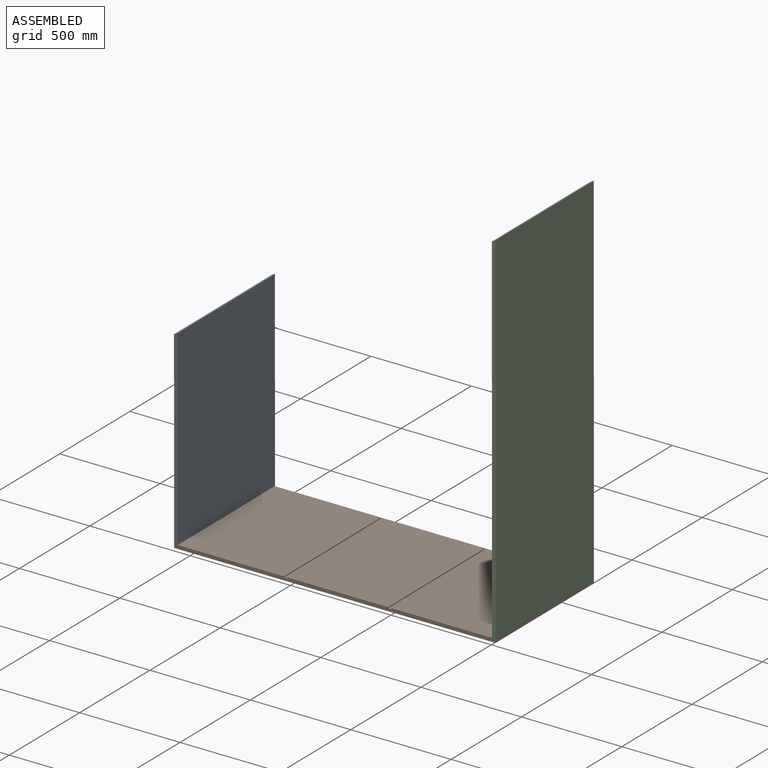
[diagram: assembled view]
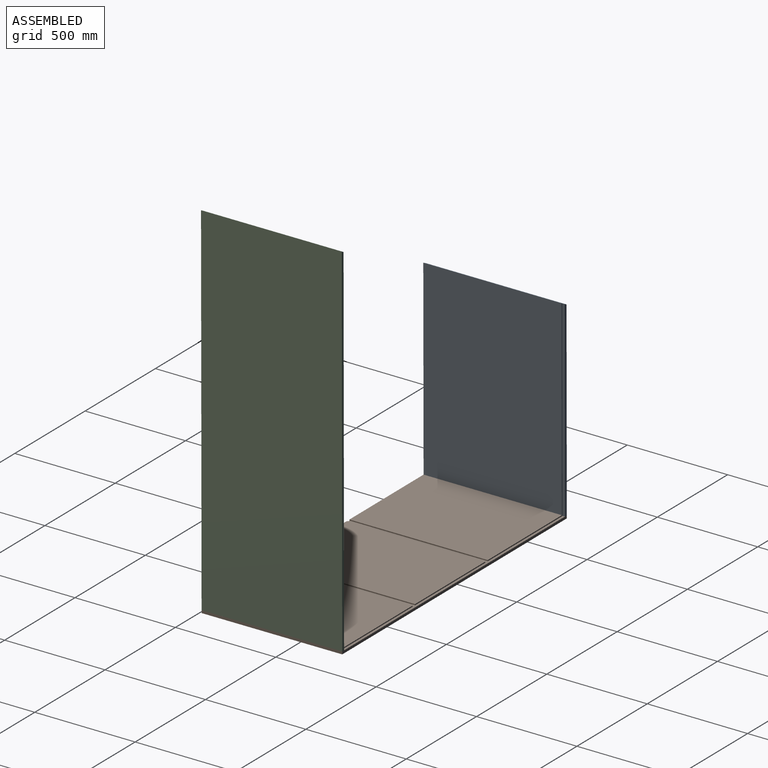
[diagram: assembled view, second angle]
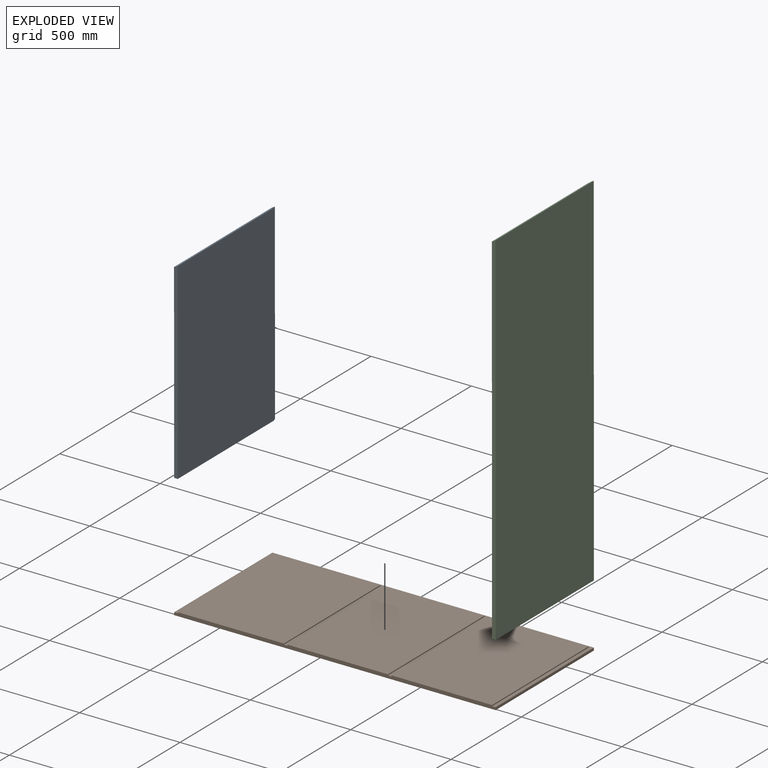
[diagram: exploded view]
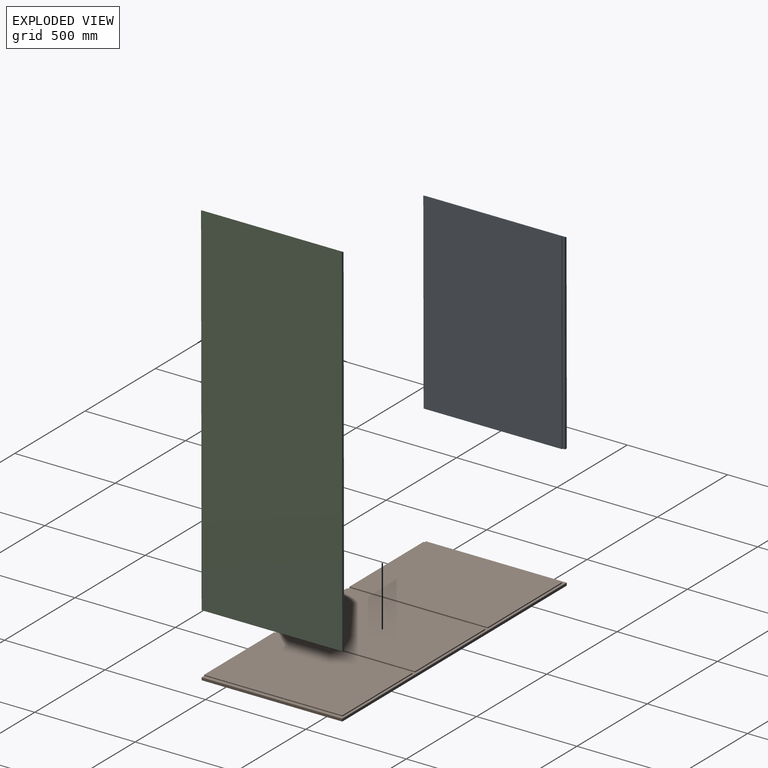
[diagram: exploded view, second angle]
ASSEMBLY  parts=3 mates=2
PART A: 8 faces, bbox 700x958.7x18 mm
  f0: plane 958.73x688mm, normal (0,0,1), area 659604.8mm2, adj f3,f5,f6,f7
  f1: plane 950.04x700mm, normal (0,0,-1), area 665025.1mm2, adj f2,f5,f6,f7
  f2: plane 956.31x13mm, normal (-1,0,0), area 12391.3mm2, adj f1,f4,f5,f7
  f3: plane 958.73x5mm, normal (-1,0,-0.05), area 4794.2mm2, adj f0,f4,f5,f7
  f4: plane 956.31x12.26mm, normal (0,0,1), area 11726.4mm2, adj f2,f3,f5,f7
  f5: plane 700x18mm, normal (0,1,0), area 12539.3mm2, adj f0,f1,f2,f3,f4,f6
  f6: plane 958.73x18mm, normal (1,0,0), area 17178.9mm2, adj f0,f1,f5,f7
  f7: plane 700x18mm, normal (0,-0.9,-0.43), area 13924.8mm2, adj f0,f1,f2,f3,f4,f6
PART B: 18 faces, bbox 1600x700x18 mm
  f0: plane 688x5mm, normal (1,0,0), area 3440mm2, adj f2,f5,f9,f17
  f1: plane 688x528mm, normal (0,0,1), area 363264mm2, adj f2,f10,f14,f15
  f2: plane 1600x18mm, normal (0,-1,0), area 28440mm2, adj f0,f1,f3,f4,f5,f6,f8,f9
  f3: plane 688x500mm, normal (0,0,1), area 344000mm2, adj f2,f12,f13,f16
  f4: plane 700x13mm, normal (-1,0,0), area 9100mm2, adj f2,f7,f8,f9
  f5: plane 688x500mm, normal (0,0,1), area 344000mm2, adj f0,f2,f11,f17
  f6: plane 700x13mm, normal (1,0,0), area 9100mm2, adj f2,f7,f8,f9
  f7: plane 1600x13mm, normal (0,1,0), area 20800mm2, adj f4,f6,f8,f9
  f8: plane 1600x700mm, normal (0,0,-1), area 1120000mm2, adj f2,f4,f6,f7
  f9: plane 1600x700mm, normal (0,0,1), area 68736mm2, adj f0,f2,f4,f6,f7,f10,f11,f12
  f10: plane 688x5mm, normal (-1,0,0), area 3440mm2, adj f1,f2,f9,f15
  f11: plane 688x5mm, normal (-1,0,0), area 3440mm2, adj f2,f5,f9,f17
  f12: plane 688x5mm, normal (1,0,0), area 3440mm2, adj f2,f3,f9,f16
  f13: plane 688x5mm, normal (-1,0,0), area 3440mm2, adj f2,f3,f9,f16
  f14: plane 688x5mm, normal (1,0,0), area 3440mm2, adj f1,f2,f9,f15
  f15: plane 528x5mm, normal (0,1,0), area 2640mm2, adj f1,f9,f10,f14
  f16: plane 500x5mm, normal (0,1,0), area 2500mm2, adj f3,f9,f12,f13
  f17: plane 500x5mm, normal (0,1,0), area 2500mm2, adj f0,f5,f9,f11
PART C: 8 faces, bbox 700x1800x18 mm
  f0: plane 1800x13mm, normal (-1,0,0), area 23355.1mm2, adj f2,f3,f6,f7
  f1: plane 1793.09x5mm, normal (-1,0,-0.05), area 8971.1mm2, adj f2,f3,f4,f7
  f2: plane 1793.09x12.26mm, normal (0,0,1), area 21986.9mm2, adj f0,f1,f3,f7
  f3: plane 700x18mm, normal (0,-1,0), area 12539.3mm2, adj f0,f1,f2,f4,f5,f6
  f4: plane 1790.43x688mm, normal (0,0,1), area 1231815.3mm2, adj f1,f3,f5,f7
  f5: plane 1800x18mm, normal (1,0,0), area 32313.9mm2, adj f3,f4,f6,f7
  f6: plane 1800x700mm, normal (0,0,-1), area 1260000mm2, adj f0,f3,f5,f7
  f7: plane 700x18mm, normal (0,0.88,0.47), area 14201.7mm2, adj f0,f1,f2,f4,f5,f6
PLACE A rot(axis=(-0.58,0.58,-0.58),119.9deg) t=(-677.14,-725.66,609.97)mm
PLACE B rot(axis=(0.69,0.19,0.7),0.1deg) t=(122.68,-724,96.69)mm
PLACE C rot(axis=(0.58,-0.58,-0.58),120deg) t=(923,-724.13,1009.41)mm
MATE parallel B.f9 <-> C.f3  axis (0,0,1) through (922.68,-723.01,109.41)mm
MATE parallel A.f5 <-> B.f9  axis (0,0,-1) through (-677.31,-725.03,109.97)mm
